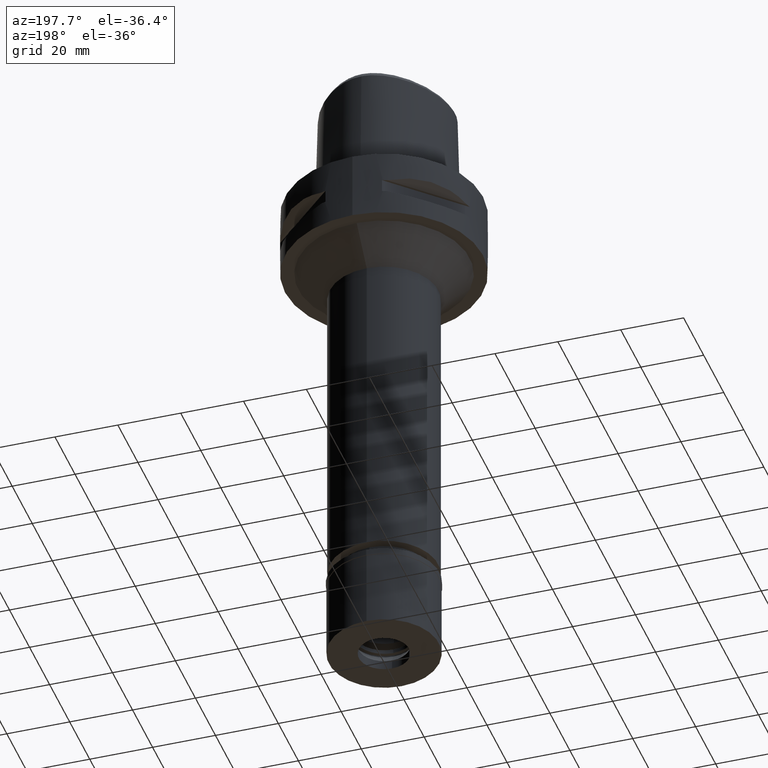
[diagram: clean part render]
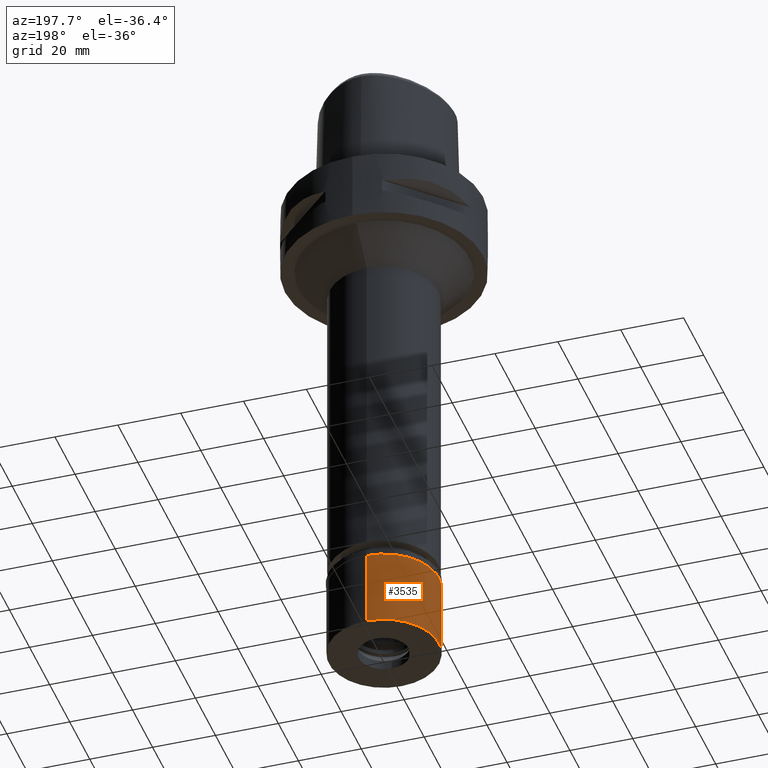
[diagram: same view with one face highlighted and labeled with its STEP entity id]
A machine part, auxiliary view. The second image highlights one B-rep face of the part: STEP entity #3535.
In plain terms, the highlighted cylindrical surface (partial cylindrical patch) has radius 17.5 mm, axis along (0, 0, -1).
Its self-contained STEP definition (entity closure, byte-faithful):
#49 = CIRCLE ( 'NONE', #2799, 17.50000000000000000 ) ;
#67 = LINE ( 'NONE', #3178, #4858 ) ;
#207 = LINE ( 'NONE', #3300, #3360 ) ;
#264 = CARTESIAN_POINT ( 'NONE',  ( 0.0000000000000000000, -17.50000000000000000, -26.70000000000000284 ) ) ;
#282 = AXIS2_PLACEMENT_3D ( 'NONE', #2880, #4408, #4441 ) ;
#333 = VERTEX_POINT ( 'NONE', #858 ) ;
#362 = DIRECTION ( 'NONE',  ( 0.0000000000000000000, 1.000000000000000000, 0.0000000000000000000 ) ) ;
#682 = CARTESIAN_POINT ( 'NONE',  ( 0.0000000000000000000, -17.50000000000000000, -2.100000000000000089 ) ) ;
#851 = DIRECTION ( 'NONE',  ( 0.0000000000000000000, 0.0000000000000000000, -1.000000000000000000 ) ) ;
#858 = CARTESIAN_POINT ( 'NONE',  ( 0.0000000000000000000, 17.50000000000000000, -2.100000000000000089 ) ) ;
#919 = DIRECTION ( 'NONE',  ( 0.0000000000000000000, 0.0000000000000000000, -1.000000000000000000 ) ) ;
#985 = DIRECTION ( 'NONE',  ( 0.0000000000000000000, 0.0000000000000000000, -1.000000000000000000 ) ) ;
#1165 = ORIENTED_EDGE ( 'NONE', *, *, #2581, .F. ) ;
#1299 = FACE_OUTER_BOUND ( 'NONE', #3660, .T. ) ;
#1784 = AXIS2_PLACEMENT_3D ( 'NONE', #4616, #3829, #362 ) ;
#2138 = CYLINDRICAL_SURFACE ( 'NONE', #282, 17.50000000000000000 ) ;
#2581 = EDGE_CURVE ( 'NONE', #2969, #3455, #67, .T. ) ;
#2799 = AXIS2_PLACEMENT_3D ( 'NONE', #3191, #851, #4260 ) ;
#2880 = CARTESIAN_POINT ( 'NONE',  ( 0.0000000000000000000, 0.0000000000000000000, 0.0000000000000000000 ) ) ;
#2969 = VERTEX_POINT ( 'NONE', #682 ) ;
#2990 = ORIENTED_EDGE ( 'NONE', *, *, #4955, .T. ) ;
#3100 = EDGE_CURVE ( 'NONE', #333, #3859, #207, .T. ) ;
#3121 = CARTESIAN_POINT ( 'NONE',  ( 0.0000000000000000000, 17.50000000000000000, -26.70000000000000284 ) ) ;
#3178 = CARTESIAN_POINT ( 'NONE',  ( 0.0000000000000000000, -17.50000000000000000, -2.100000000000000089 ) ) ;
#3191 = CARTESIAN_POINT ( 'NONE',  ( 0.0000000000000000000, 0.0000000000000000000, -2.100000000000000089 ) ) ;
#3221 = ORIENTED_EDGE ( 'NONE', *, *, #4483, .T. ) ;
#3300 = CARTESIAN_POINT ( 'NONE',  ( 0.0000000000000000000, 17.50000000000000000, -2.100000000000000089 ) ) ;
#3360 = VECTOR ( 'NONE', #985, 1000.000000000000000 ) ;
#3455 = VERTEX_POINT ( 'NONE', #264 ) ;
#3535 = ADVANCED_FACE ( 'NONE', ( #1299 ), #2138, .T. ) ;
#3572 = ORIENTED_EDGE ( 'NONE', *, *, #3100, .T. ) ;
#3660 = EDGE_LOOP ( 'NONE', ( #2990, #1165, #3221, #3572 ) ) ;
#3736 = CIRCLE ( 'NONE', #1784, 17.50000000000000000 ) ;
#3829 = DIRECTION ( 'NONE',  ( 0.0000000000000000000, 0.0000000000000000000, 1.000000000000000000 ) ) ;
#3859 = VERTEX_POINT ( 'NONE', #3121 ) ;
#4260 = DIRECTION ( 'NONE',  ( 0.0000000000000000000, -1.000000000000000000, 0.0000000000000000000 ) ) ;
#4408 = DIRECTION ( 'NONE',  ( 0.0000000000000000000, 0.0000000000000000000, -1.000000000000000000 ) ) ;
#4441 = DIRECTION ( 'NONE',  ( 0.0000000000000000000, -1.000000000000000000, 0.0000000000000000000 ) ) ;
#4483 = EDGE_CURVE ( 'NONE', #2969, #333, #49, .T. ) ;
#4616 = CARTESIAN_POINT ( 'NONE',  ( 0.0000000000000000000, 0.0000000000000000000, -26.70000000000000284 ) ) ;
#4858 = VECTOR ( 'NONE', #919, 1000.000000000000000 ) ;
#4955 = EDGE_CURVE ( 'NONE', #3859, #3455, #3736, .T. ) ;